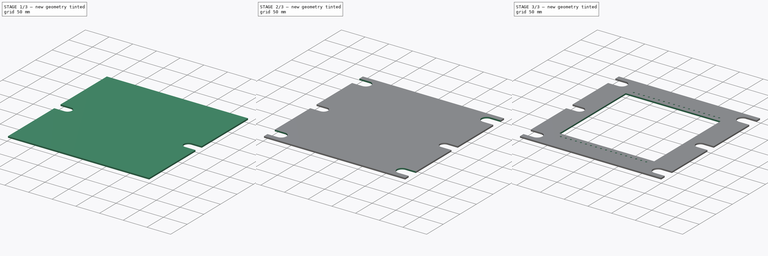
[diagram: build sequence overview — one tinted view per stage of 3, left to right]
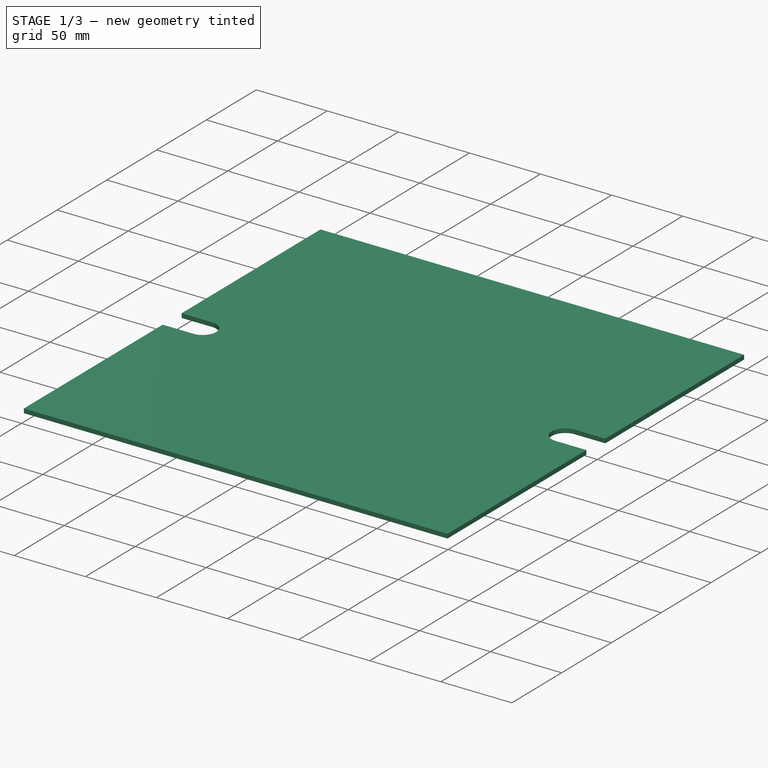
[diagram: stage 1 of 3 — iso view after this stage's code; geometry added in this stage tinted green]
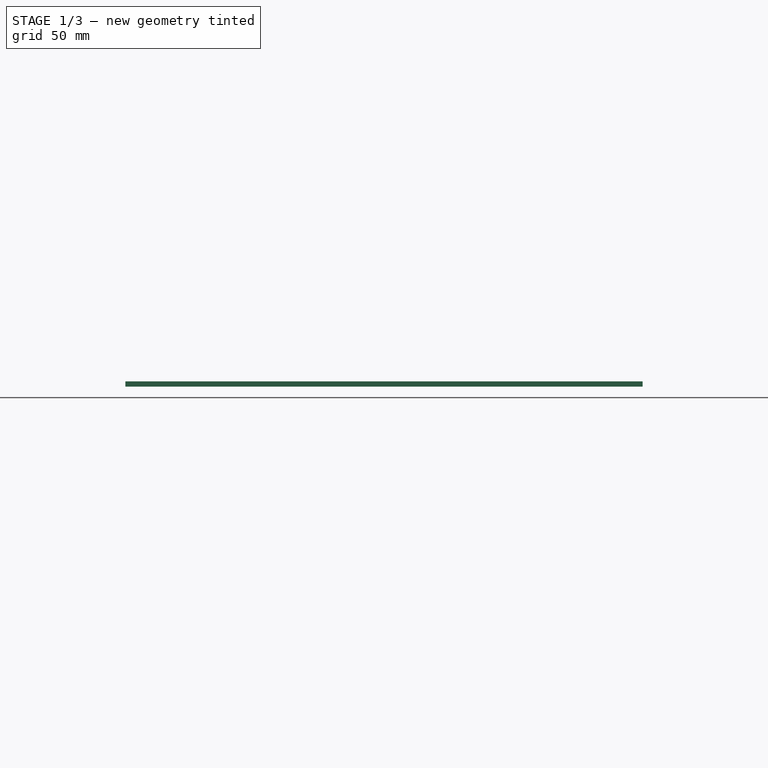
[diagram: stage 1 of 3 — front view after this stage's code; geometry added in this stage tinted green]
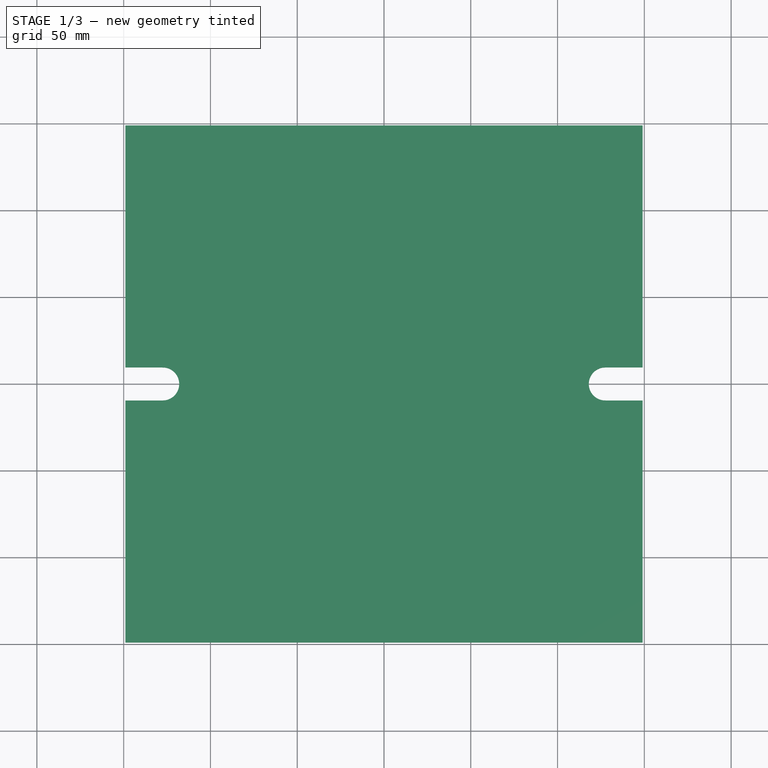
[diagram: stage 1 of 3 — top view after this stage's code; geometry added in this stage tinted green]
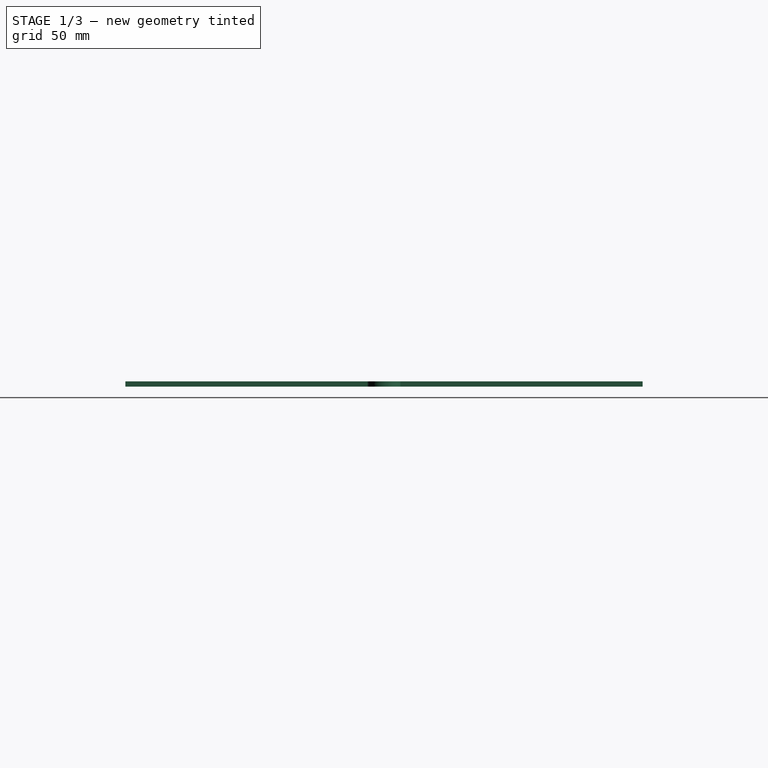
[diagram: stage 1 of 3 — right view after this stage's code; geometry added in this stage tinted green]
FCSTD DOCUMENT  (FreeCAD 0.15R4671 (Git))
Label: plateCarriage
License: All rights reserved
LicenseURL: http://en.wikipedia.org/wiki/All_rights_reserved
objects: Sketcher::SketchObject×5, PartDesign::Pocket×4, PartDesign::Mirrored×4, PartDesign::MultiTransform×2, PartDesign::Pad×1, PartDesign::LinearPattern×1
note: 22 computed .brp shape members not serialized (recipe doc carries the construction recipe); baked Part::Feature solids carry a one-line shape summary decoded from their .brp

FEATURE [Sketcher::SketchObject] Sketch
  sketch-geometry (6):
    g0: LineSegment StartX=-149 StartY=-149 StartZ=0 EndX=149 EndY=-149 EndZ=0
    g1: LineSegment StartX=149 StartY=-149 StartZ=0 EndX=149 EndY=149 EndZ=0
    g2: LineSegment StartX=149 StartY=149 StartZ=0 EndX=-149 EndY=149 EndZ=0
    g3: LineSegment StartX=-149 StartY=149 StartZ=0 EndX=-149 EndY=-149 EndZ=0
    g4: LineSegment [constr] StartX=-149 StartY=149 StartZ=0 EndX=149 EndY=-149 EndZ=0
    g5: LineSegment [constr] StartX=149 StartY=149 StartZ=0 EndX=-149 EndY=-149 EndZ=0
  constraints (16):
    c: Coincident(g0,g1)
    c: Coincident(g1,g2)
    c: Coincident(g2,g3)
    c: Coincident(g3,g0)
    c: Horizontal(g0)
    c: Horizontal(g2)
    c: Vertical(g1)
    c: Vertical(g3)
    c: Coincident(g4,g2)
    c: Coincident(g4,g0)
    c: PointOnObject(g-1,g4)
    c: Coincident(g5,g1)
    c: Coincident(g5,g0)
    c: PointOnObject(g-1,g5)
    c: Equal(g3,g0)
    c: DistanceX(g0) = 298
FEATURE [PartDesign::Pad] Pad
  Length = 3
  Length2 = 100
  Sketch = -> Sketch
  Type = 0
FEATURE [Sketcher::SketchObject] Sketch003
  ExternalGeometry = -> [Pad]
  Placement = pos=(0,0,3) rot=(0,0,1;0rad)
  Support = -> Pad [Face6]
  sketch-geometry (4):
    g0: ArcOfCircle CenterX=127.5 CenterY=0 CenterZ=0 NormalX=0 NormalY=0 NormalZ=1 Radius=9.5 StartAngle=1.5708 EndAngle=4.71239
    g1: LineSegment StartX=127.5 StartY=9.5 StartZ=0 EndX=149 EndY=9.5 EndZ=0
    g2: LineSegment StartX=127.5 StartY=-9.5 StartZ=0 EndX=149 EndY=-9.5 EndZ=0
    g3: LineSegment StartX=149 StartY=9.5 StartZ=0 EndX=149 EndY=-9.5 EndZ=0
  constraints (13):
    c: PointOnObject(g0,g-1)
    c: Coincident(g1,g0)
    c: Horizontal(g1)
    c: PointOnObject(g1,g-3)
    c: Coincident(g2,g0)
    c: PointOnObject(g2,g-3)
    c: Horizontal(g2)
    c: Tangent(g2,g0)
    c: Tangent(g0,g1)
    c: Coincident(g3,g1)
    c: Coincident(g3,g2)
    c: Radius(g0) = 9.5
    c: DistanceX(g0) = 127.5
FEATURE [PartDesign::Pocket] Pocket001
  Length = 5
  Sketch = -> Sketch003
  Type = 1
FEATURE [PartDesign::Mirrored] Mirrored
  MirrorPlane = -> Sketch003 [V_Axis]
  Originals = -> [Pocket001]
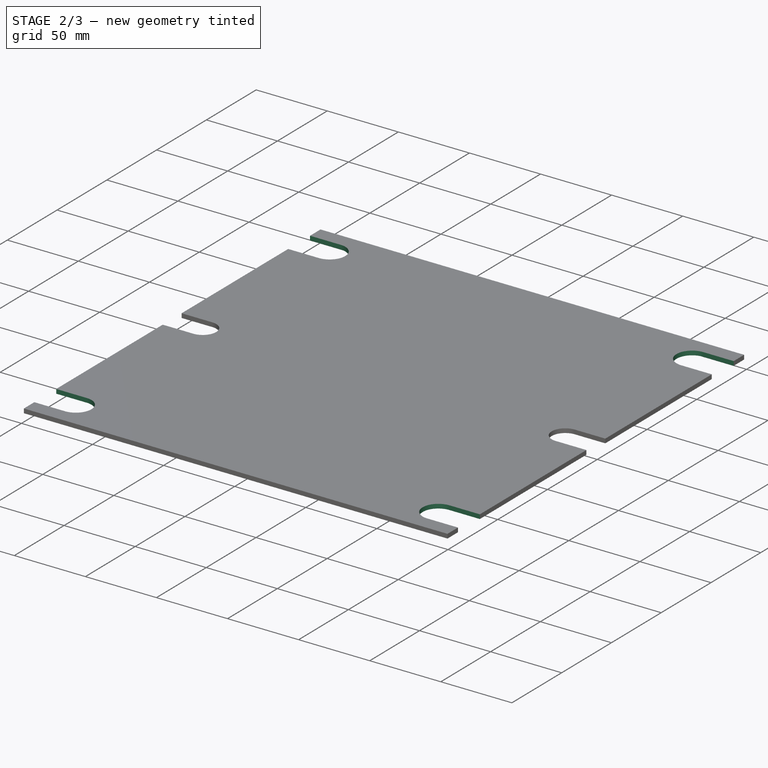
[diagram: stage 2 of 3 — iso view after this stage's code; geometry added in this stage tinted green]
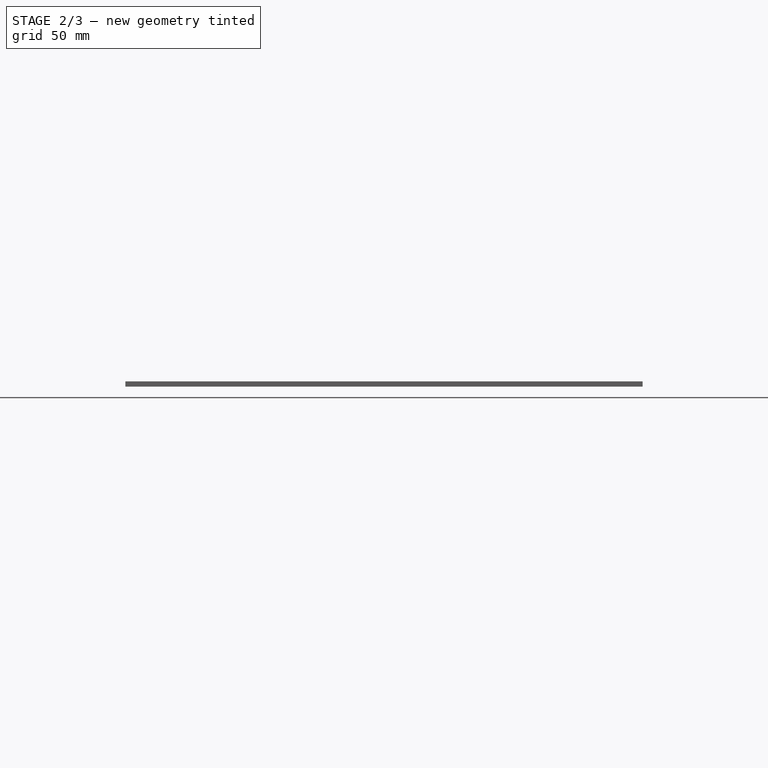
[diagram: stage 2 of 3 — front view after this stage's code; geometry added in this stage tinted green]
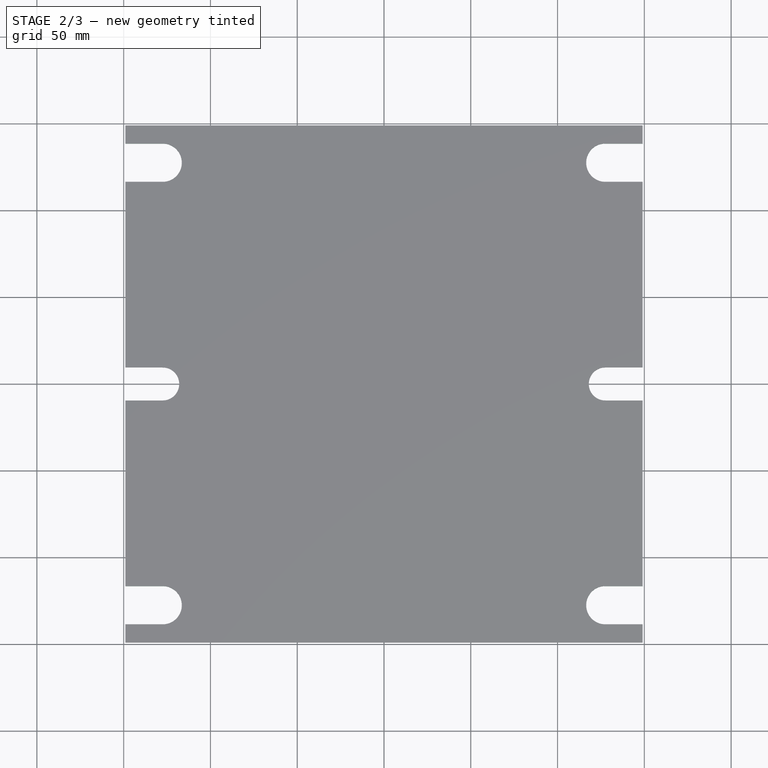
[diagram: stage 2 of 3 — top view after this stage's code; geometry added in this stage tinted green]
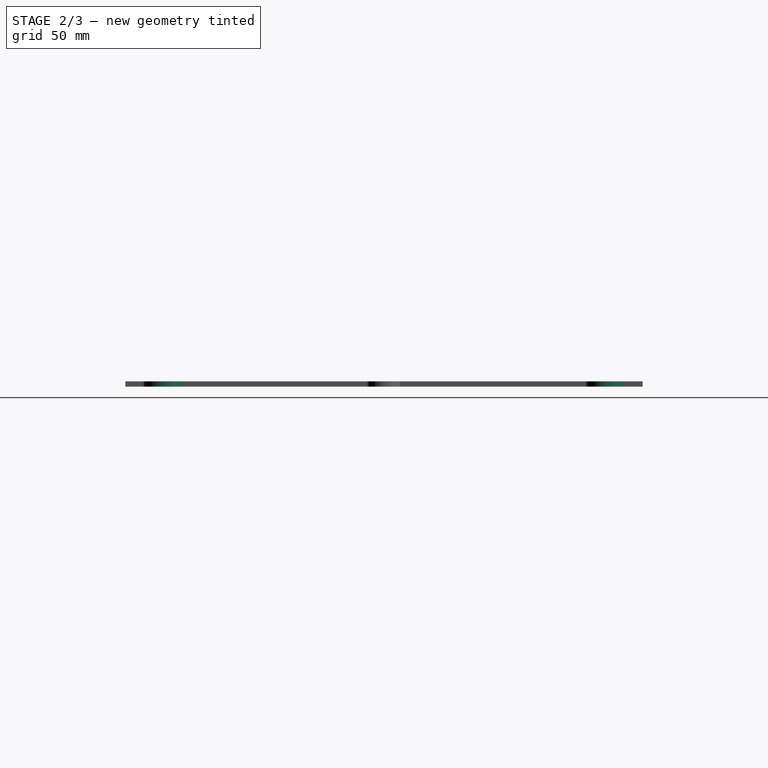
[diagram: stage 2 of 3 — right view after this stage's code; geometry added in this stage tinted green]
FEATURE [Sketcher::SketchObject] Sketch004
  ExternalGeometry = -> [Mirrored]
  Placement = pos=(0,0,3) rot=(0,0,1;0rad)
  Support = -> Mirrored [Face5]
  sketch-geometry (4):
    g0: ArcOfCircle CenterX=127.5 CenterY=127.5 CenterZ=0 NormalX=0 NormalY=0 NormalZ=1 Radius=11 StartAngle=1.5708 EndAngle=4.71239
    g1: LineSegment StartX=127.5 StartY=138.5 StartZ=0 EndX=149 EndY=138.5 EndZ=0
    g2: LineSegment StartX=127.5 StartY=116.5 StartZ=0 EndX=149 EndY=116.5 EndZ=0
    g3: LineSegment StartX=149 StartY=138.5 StartZ=0 EndX=149 EndY=116.5 EndZ=0
  constraints (13):
    c: Coincident(g1,g0)
    c: PointOnObject(g1,g-3)
    c: Horizontal(g1)
    c: Coincident(g2,g0)
    c: PointOnObject(g2,g-3)
    c: Horizontal(g2)
    c: Coincident(g3,g1)
    c: Coincident(g3,g2)
    c: Radius(g0) = 11
    c: DistanceX(g0) = 127.5
    c: Tangent(g0,g2)
    c: Tangent(g0,g1)
    c: DistanceY(g0) = 127.5
FEATURE [PartDesign::Pocket] Pocket
  Length = 5
  Sketch = -> Sketch004
  Type = 1
FEATURE [PartDesign::Mirrored] Mirrored001
  MirrorPlane = -> Sketch004 [V_Axis]
FEATURE [PartDesign::Mirrored] Mirrored002
  MirrorPlane = -> Sketch004 [H_Axis]
FEATURE [PartDesign::MultiTransform] MultiTransform
  Originals = -> [Pocket]
  Transformations = -> [Mirrored001,Mirrored002]
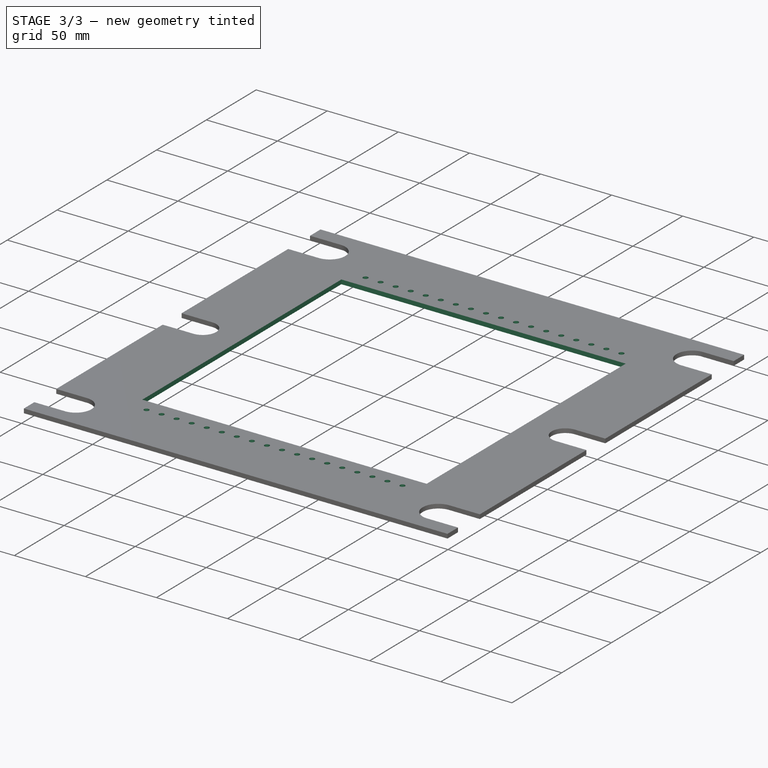
[diagram: stage 3 of 3 — iso view after this stage's code; geometry added in this stage tinted green]
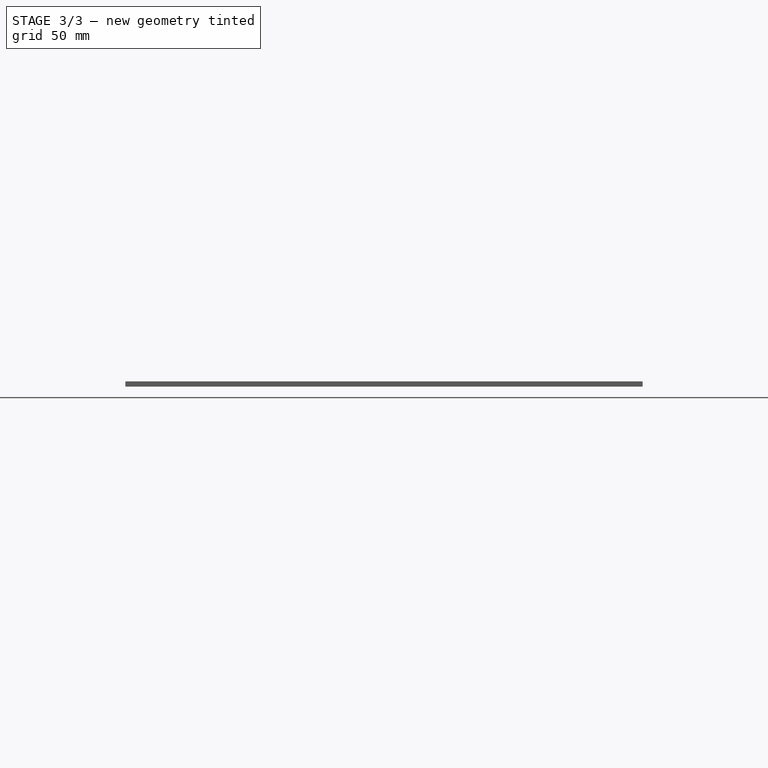
[diagram: stage 3 of 3 — front view after this stage's code; geometry added in this stage tinted green]
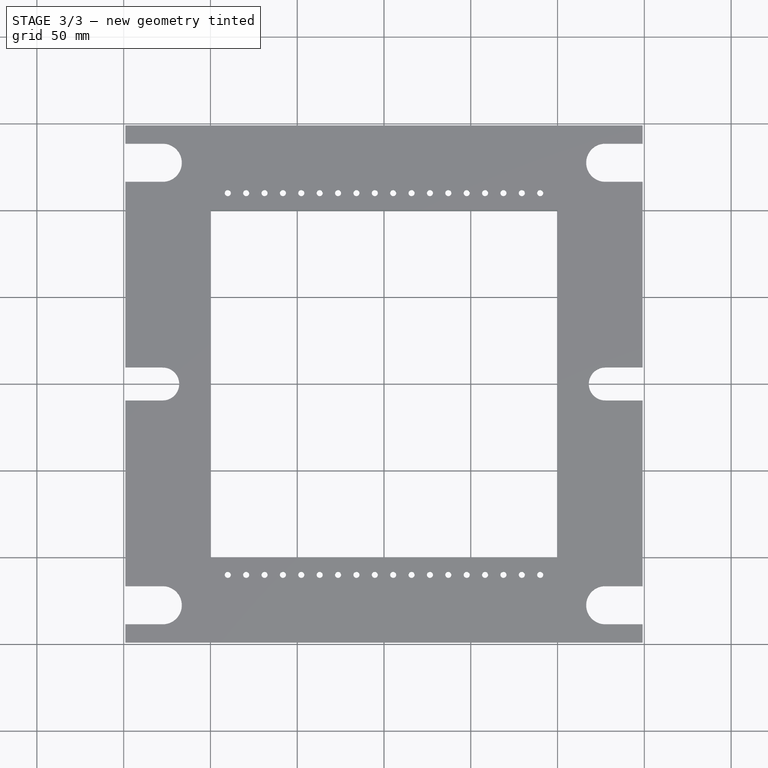
[diagram: stage 3 of 3 — top view after this stage's code; geometry added in this stage tinted green]
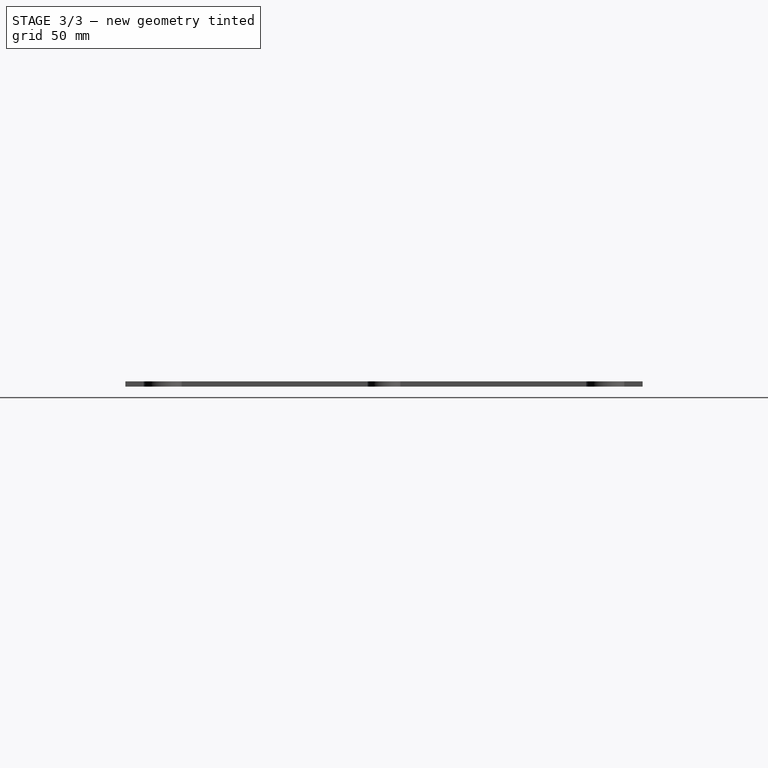
[diagram: stage 3 of 3 — right view after this stage's code; geometry added in this stage tinted green]
FEATURE [Sketcher::SketchObject] Sketch005
  Placement = pos=(0,0,3) rot=(0,0,1;0rad)
  Support = -> MultiTransform [Face5]
  sketch-geometry (6):
    g0: LineSegment StartX=-100 StartY=-100 StartZ=0 EndX=100 EndY=-100 EndZ=0
    g1: LineSegment StartX=100 StartY=-100 StartZ=0 EndX=100 EndY=100 EndZ=0
    g2: LineSegment StartX=100 StartY=100 StartZ=0 EndX=-100 EndY=100 EndZ=0
    g3: LineSegment StartX=-100 StartY=100 StartZ=0 EndX=-100 EndY=-100 EndZ=0
    g4: LineSegment [constr] StartX=-100 StartY=100 StartZ=0 EndX=100 EndY=-100 EndZ=0
    g5: LineSegment [constr] StartX=-100 StartY=-100 StartZ=0 EndX=100 EndY=100 EndZ=0
  constraints (16):
    c: Coincident(g0,g1)
    c: Coincident(g1,g2)
    c: Coincident(g2,g3)
    c: Coincident(g3,g0)
    c: Horizontal(g0)
    c: Horizontal(g2)
    c: Vertical(g1)
    c: Vertical(g3)
    c: Coincident(g4,g2)
    c: Coincident(g4,g0)
    c: PointOnObject(g-1,g4)
    c: Coincident(g5,g0)
    c: Coincident(g5,g1)
    c: PointOnObject(g-1,g5)
    c: Equal(g2,g1)
    c: DistanceX(g2) = -200
FEATURE [PartDesign::Pocket] Pocket002
  Length = 5
  Sketch = -> Sketch005
  Type = 1
FEATURE [Sketcher::SketchObject] Sketch006
  ExternalGeometry = -> [Pocket002]
  Placement = pos=(0,0,3) rot=(0,0,1;0rad)
  Support = -> Pocket002 [Face5]
  sketch-geometry (1):
    g0: Circle CenterX=-90 CenterY=110 CenterZ=0 NormalX=0 NormalY=0 NormalZ=1 Radius=1.75
  constraints (3):
    c: Radius(g0) = 1.75
    c: DistanceX(g0,g-3) = -10
    c: DistanceY(g-3,g0) = 10
FEATURE [PartDesign::Pocket] Pocket003
  Length = 5
  Sketch = -> Sketch006
  Type = 1
FEATURE [PartDesign::Mirrored] Mirrored003
  MirrorPlane = -> Sketch006 [H_Axis]
FEATURE [PartDesign::LinearPattern] LinearPattern
  Direction = -> Sketch006 [H_Axis]
  Length = 180
  Occurrences = 18
FEATURE [PartDesign::MultiTransform] MultiTransform001
  Originals = -> [Pocket003]
  Transformations = -> [Mirrored003,LinearPattern]
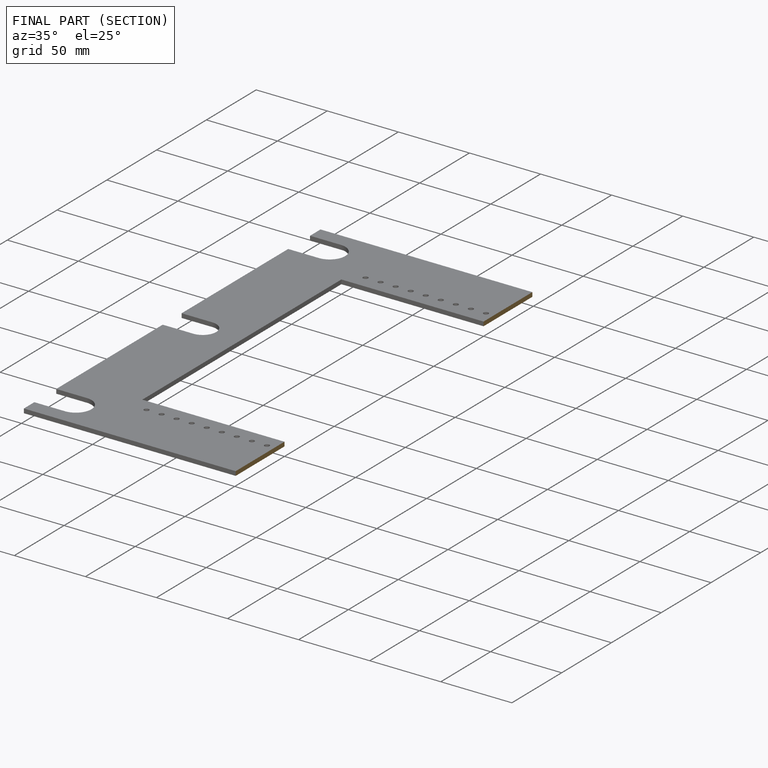
[diagram: finished part — half-section view (interior)]
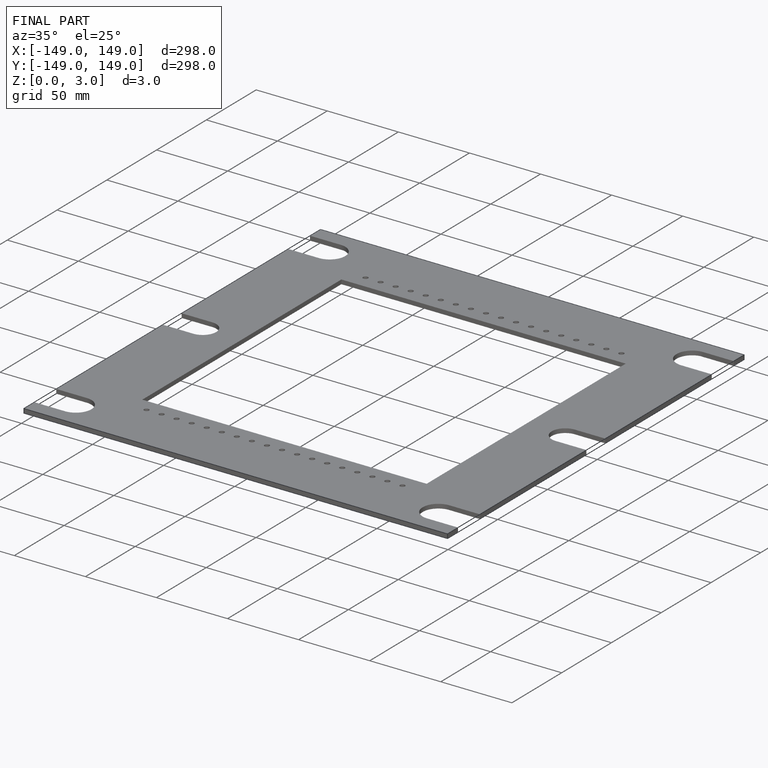
[diagram: finished part — iso view with bounding-box wireframe]
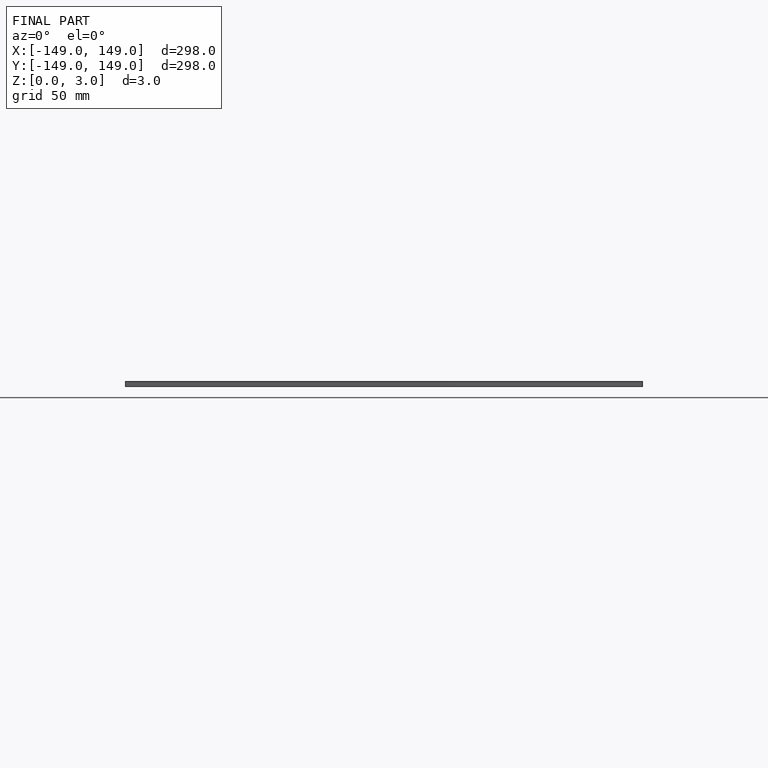
[diagram: finished part — front view with bounding-box wireframe]
